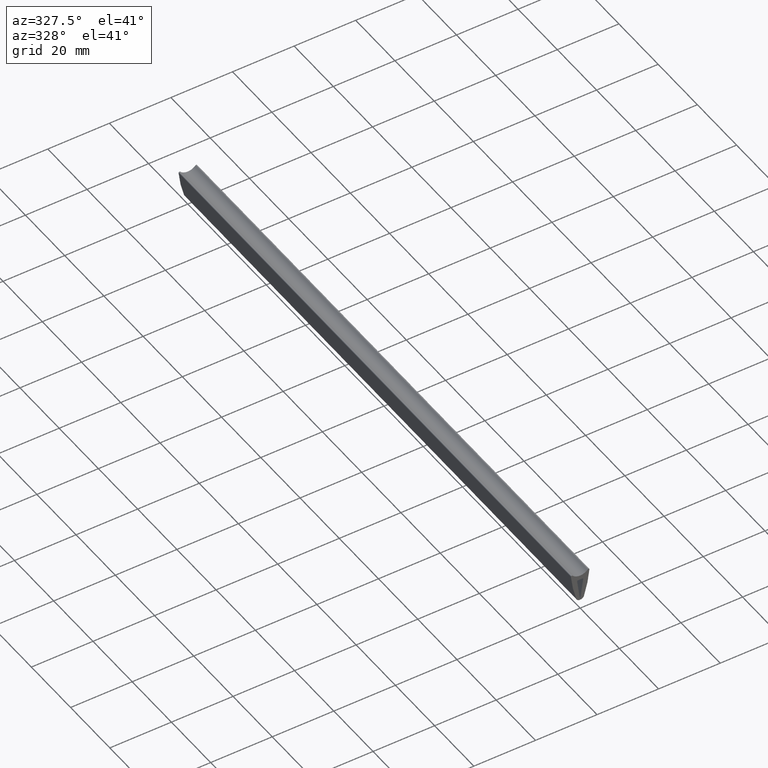
[diagram: clean part render]
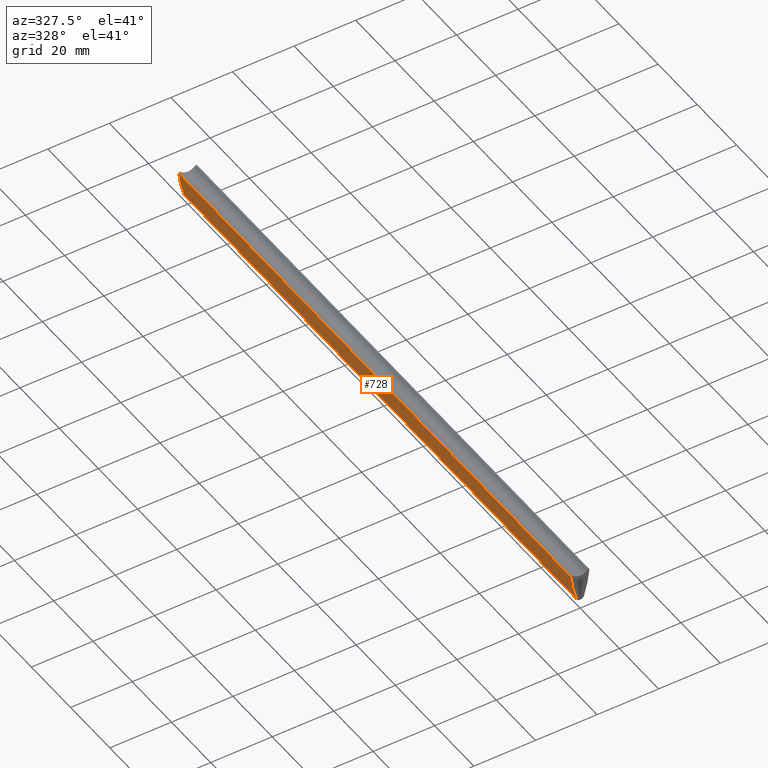
[diagram: same view with one face highlighted and labeled with its STEP entity id]
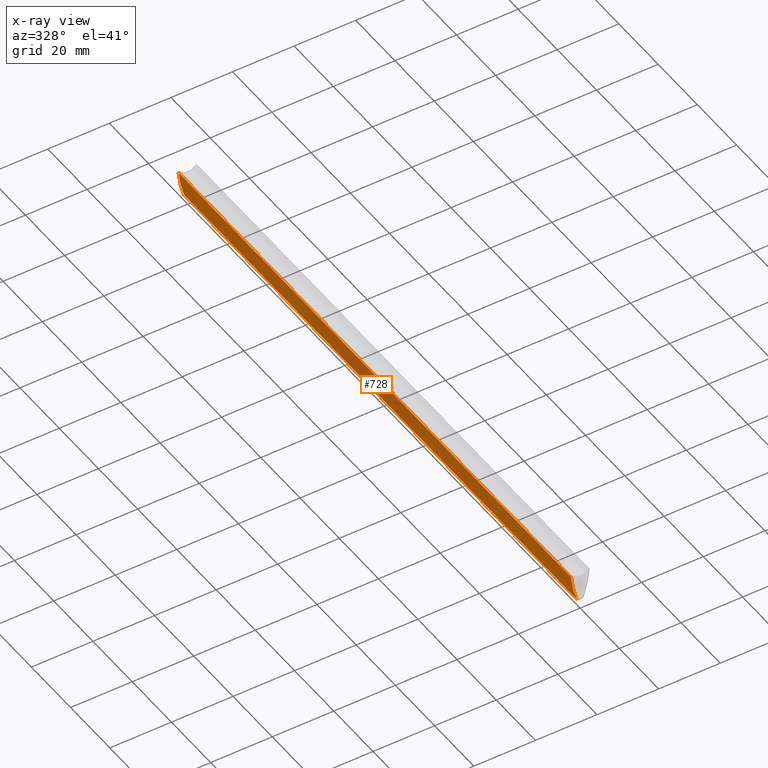
[diagram: x-ray of the same camera — body ghosted, the highlighted face saturated]
A machine part, auxiliary view. The second image highlights one B-rep face of the part: STEP entity #728.
The next image is the same camera in x-ray: the body ghosted, the highlighted face saturated — about 0% of this face is hidden behind the body in this view.
In plain terms, the highlighted face is a freeform B-spline surface patch.
Its self-contained STEP definition (entity closure, byte-faithful):
#10=CARTESIAN_POINT('',(-2.998893122436820,0.0,0.874253129103840));
#11=VERTEX_POINT('',#10);
#12=CARTESIAN_POINT('',(-1.237973647622556,0.0,-7.900937391492761));
#13=VERTEX_POINT('',#12);
#14=CARTESIAN_POINT('',(-2.998893122436820,0.0,0.874253129103840));
#15=CARTESIAN_POINT('',(-2.612403764091394,0.0,-3.612467279352695));
#16=CARTESIAN_POINT('',(-1.237973647622632,0.0,-7.900937391492790));
#24=(BOUNDED_CURVE()B_SPLINE_CURVE(2,(#14,#15,#16),.UNSPECIFIED.,.F.,.U.)CURVE()GEOMETRIC_REPRESENTATION_ITEM()QUASI_UNIFORM_CURVE()RATIONAL_B_SPLINE_CURVE((1.0,0.993722106049589,1.0))REPRESENTATION_ITEM(''));
#25=EDGE_CURVE('',#11,#13,#24,.T.);
#198=CARTESIAN_POINT('',(-2.998893122436820,200.0,0.874253129103840));
#199=VERTEX_POINT('',#198);
#200=CARTESIAN_POINT('',(-1.237973647622556,200.0,-7.900937391492761));
#201=VERTEX_POINT('',#200);
#202=CARTESIAN_POINT('',(-2.998893122436889,200.0,0.874253129103833));
#203=CARTESIAN_POINT('',(-2.612403764091394,200.0,-3.612467279352695));
#204=CARTESIAN_POINT('',(-1.237973647622632,200.0,-7.900937391492790));
#212=(BOUNDED_CURVE()B_SPLINE_CURVE(2,(#202,#203,#204),.UNSPECIFIED.,.F.,.U.)CURVE()GEOMETRIC_REPRESENTATION_ITEM()QUASI_UNIFORM_CURVE()RATIONAL_B_SPLINE_CURVE((1.0,0.993722106049589,1.0))REPRESENTATION_ITEM(''));
#213=EDGE_CURVE('',#199,#201,#212,.T.);
#405=CARTESIAN_POINT('',(-2.998893122436820,200.0,0.874253129103840));
#406=CARTESIAN_POINT('',(-2.998893122436820,0.0,0.874253129103840));
#407=QUASI_UNIFORM_CURVE('',1,(#405,#406),.UNSPECIFIED.,.F.,.U.);
#408=EDGE_CURVE('',#199,#11,#407,.T.);
#698=CARTESIAN_POINT('',(-1.237973647622556,200.0,-7.900937391492761));
#699=CARTESIAN_POINT('',(-1.237973647622556,0.0,-7.900937391492761));
#700=QUASI_UNIFORM_CURVE('',1,(#698,#699),.UNSPECIFIED.,.F.,.U.);
#701=EDGE_CURVE('',#201,#13,#700,.T.);
#708=CARTESIAN_POINT('',(-1.099405979433446,204.999999999999970,-8.325137212607247));
#709=CARTESIAN_POINT('',(-1.099405979433446,-5.125000000000000,-8.325137212607247));
#710=CARTESIAN_POINT('',(-2.664707935825618,205.0,-3.622291023642643));
#711=CARTESIAN_POINT('',(-2.664707935825618,-5.125000000000002,-3.622291023642643));
#712=CARTESIAN_POINT('',(-3.034809254872090,204.999999999999970,1.320376020108550));
#713=CARTESIAN_POINT('',(-3.034809254872090,-5.125000000000000,1.320376020108550));
#721=(BOUNDED_SURFACE()B_SPLINE_SURFACE(1,2,((#708,#710,#712),(#709,#711,#713)),.UNSPECIFIED.,.F.,.F.,.U.)B_SPLINE_SURFACE_WITH_KNOTS((2,2),(3,3),(0.0,210.125000000000000),(0.0,9.875239749482791),.UNSPECIFIED.)GEOMETRIC_REPRESENTATION_ITEM()RATIONAL_B_SPLINE_SURFACE(((0.998609512048968,0.989512599437258,0.995553457017018),(0.998609512048968,0.989512599437258,0.995553457017018)))REPRESENTATION_ITEM('')SURFACE());
#722=ORIENTED_EDGE('',*,*,#25,.F.);
#723=ORIENTED_EDGE('',*,*,#408,.F.);
#724=ORIENTED_EDGE('',*,*,#213,.T.);
#725=ORIENTED_EDGE('',*,*,#701,.T.);
#726=EDGE_LOOP('',(#722,#723,#724,#725));
#727=FACE_OUTER_BOUND('',#726,.T.);
#728=ADVANCED_FACE('',(#727),#721,.T.);